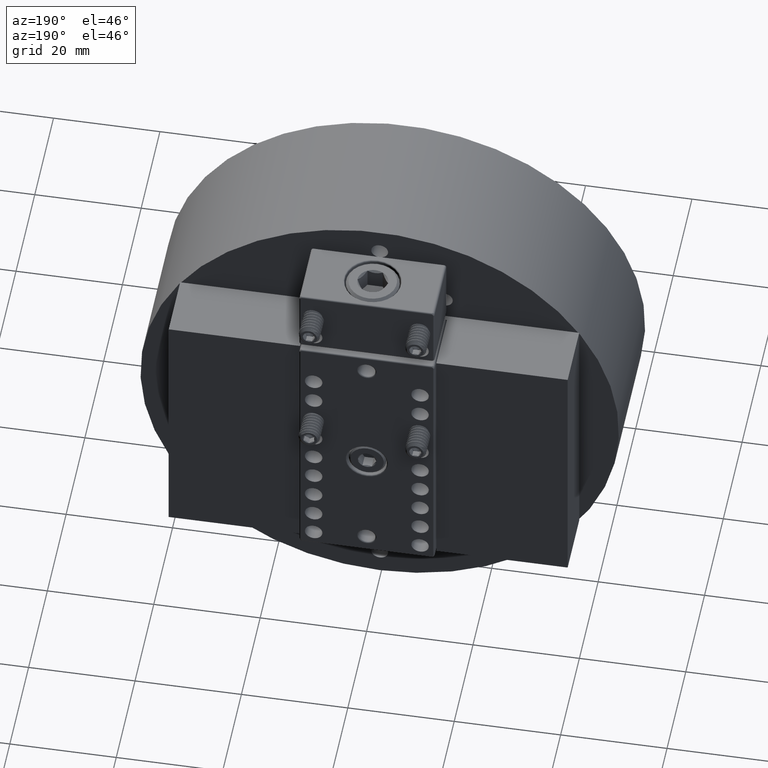
[diagram: clean part render]
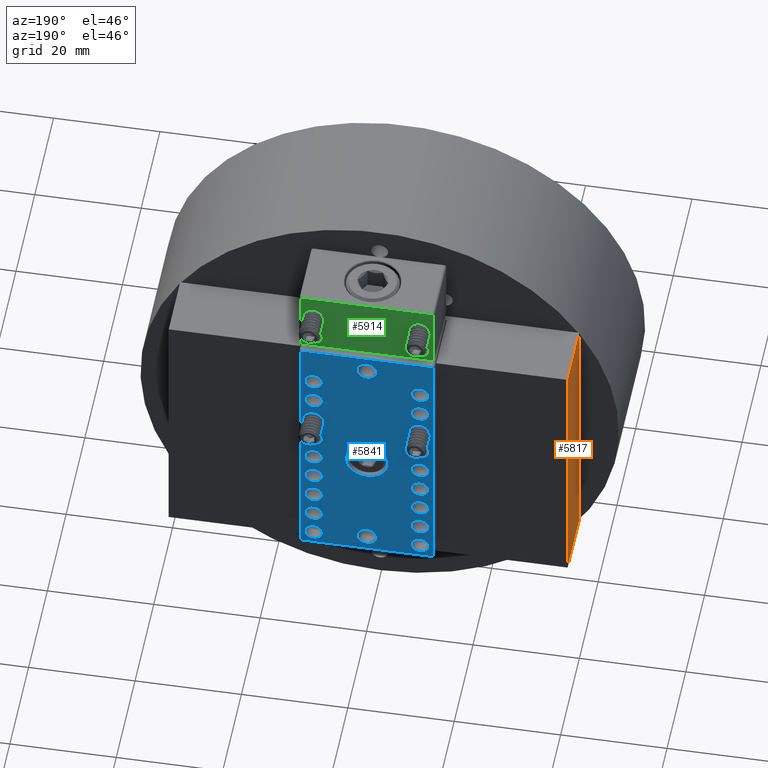
[diagram: same view with three faces highlighted in distinct colors, each labeled with its STEP entity id]
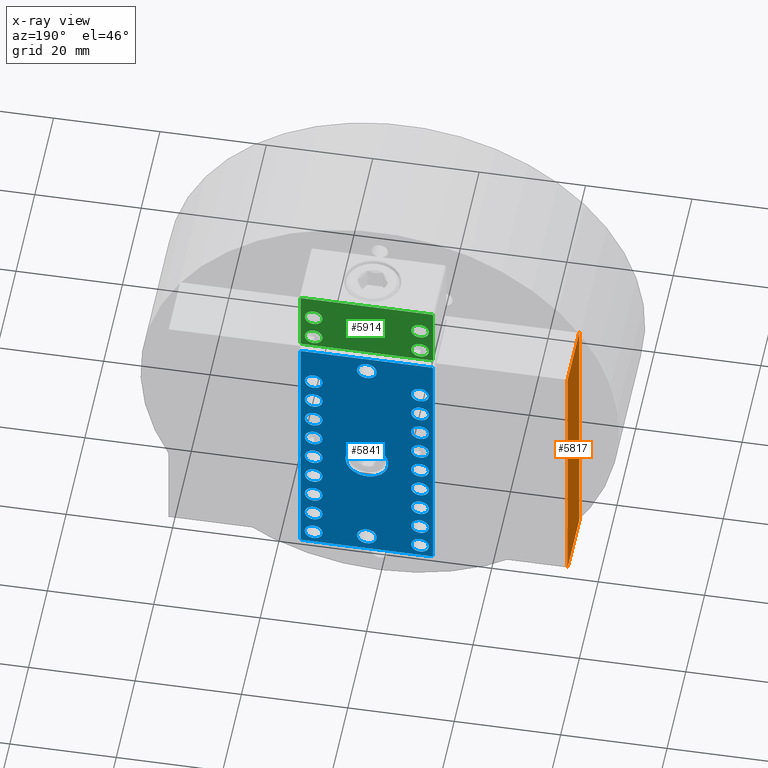
[diagram: x-ray of the same camera — body ghosted, the three highlighted faces saturated]
A machine part, auxiliary view with three faces highlighted in distinct colors.
The next image is the same camera in x-ray (body ghosted, the three faces saturated) — at least one of them is partly hidden behind the body in this view.
Their STEP definitions:

[orange] entity #5817 — the highlighted planar face has unit normal (-1, -0, 0).
#631=PLANE('',#6198);
#729=FACE_OUTER_BOUND('',#1095,.T.);
#1095=EDGE_LOOP('',(#3963,#3964,#3965,#3966));
#1531=LINE('',#8484,#1864);
#1547=LINE('',#8517,#1880);
#1551=LINE('',#8523,#1884);
#1554=LINE('',#8529,#1887);
#1864=VECTOR('',#6864,0.393700787401575);
#1880=VECTOR('',#6890,0.393700787401575);
#1884=VECTOR('',#6896,0.393700787401575);
#1887=VECTOR('',#6903,0.393700787401575);
#2484=VERTEX_POINT('',#8481);
#2485=VERTEX_POINT('',#8483);
#2496=VERTEX_POINT('',#8514);
#2497=VERTEX_POINT('',#8516);
#3038=EDGE_CURVE('',#2484,#2485,#1531,.T.);
#3054=EDGE_CURVE('',#2496,#2497,#1547,.T.);
#3058=EDGE_CURVE('',#2485,#2496,#1551,.T.);
#3061=EDGE_CURVE('',#2484,#2497,#1554,.T.);
#3963=ORIENTED_EDGE('',*,*,#3038,.F.);
#3964=ORIENTED_EDGE('',*,*,#3061,.T.);
#3965=ORIENTED_EDGE('',*,*,#3054,.F.);
#3966=ORIENTED_EDGE('',*,*,#3058,.F.);
#5817=ADVANCED_FACE('',(#729),#631,.T.);
#6198=AXIS2_PLACEMENT_3D('',#8531,#6905,#6906);
#6864=DIRECTION('',(0.,0.,-1.));
#6890=DIRECTION('',(0.,0.,1.));
#6896=DIRECTION('',(0.,1.,0.));
#6903=DIRECTION('',(0.,1.,0.));
#6905=DIRECTION('center_axis',(-1.,0.,0.));
#6906=DIRECTION('ref_axis',(0.,0.,1.));
#8481=CARTESIAN_POINT('',(-1.47637795275591,1.41732283464567,0.984251968503936));
#8483=CARTESIAN_POINT('',(-1.47637795275591,1.41732283464567,-0.984251968503938));
#8484=CARTESIAN_POINT('',(-1.47637795275591,1.41732283464567,0.984251968503936));
#8514=CARTESIAN_POINT('',(-1.47637795275591,1.90157480314961,-0.984251968503938));
#8516=CARTESIAN_POINT('',(-1.47637795275591,1.90157480314961,0.984251968503936));
#8517=CARTESIAN_POINT('',(-1.47637795275591,1.90157480314961,0.984251968503936));
#8523=CARTESIAN_POINT('',(-1.47637795275591,1.41732283464567,-0.984251968503938));
#8529=CARTESIAN_POINT('',(-1.47637795275591,1.41732283464567,0.984251968503936));
#8531=CARTESIAN_POINT('Origin',(-1.47637795275591,1.41732283464567,-0.984251968503938));

[blue] entity #5841 — the highlighted planar face has unit normal (0, 1, -0).
#546=FACE_BOUND('',#1126,.T.);
#547=FACE_BOUND('',#1127,.T.);
#548=FACE_BOUND('',#1128,.T.);
#549=FACE_BOUND('',#1129,.T.);
#550=FACE_BOUND('',#1130,.T.);
#551=FACE_BOUND('',#1131,.T.);
#552=FACE_BOUND('',#1132,.T.);
#553=FACE_BOUND('',#1133,.T.);
#554=FACE_BOUND('',#1134,.T.);
#555=FACE_BOUND('',#1135,.T.);
#556=FACE_BOUND('',#1136,.T.);
#557=FACE_BOUND('',#1137,.T.);
#558=FACE_BOUND('',#1138,.T.);
#559=FACE_BOUND('',#1139,.T.);
#560=FACE_BOUND('',#1140,.T.);
#561=FACE_BOUND('',#1141,.T.);
#562=FACE_BOUND('',#1142,.T.);
#563=FACE_BOUND('',#1143,.T.);
#564=FACE_BOUND('',#1144,.T.);
#565=FACE_BOUND('',#1145,.T.);
#566=FACE_BOUND('',#1146,.T.);
#638=PLANE('',#6274);
#753=FACE_OUTER_BOUND('',#1125,.T.);
#1125=EDGE_LOOP('',(#4094,#4095,#4096,#4097,#4098,#4099,#4100,#4101));
#1126=EDGE_LOOP('',(#4102));
#1127=EDGE_LOOP('',(#4103));
#1128=EDGE_LOOP('',(#4104));
#1129=EDGE_LOOP('',(#4105));
#1130=EDGE_LOOP('',(#4106));
#1131=EDGE_LOOP('',(#4107));
#1132=EDGE_LOOP('',(#4108));
#1133=EDGE_LOOP('',(#4109));
#1134=EDGE_LOOP('',(#4110));
#1135=EDGE_LOOP('',(#4111));
#1136=EDGE_LOOP('',(#4112));
#1137=EDGE_LOOP('',(#4113));
#1138=EDGE_LOOP('',(#4114));
#1139=EDGE_LOOP('',(#4115));
#1140=EDGE_LOOP('',(#4116));
#1141=EDGE_LOOP('',(#4117));
#1142=EDGE_LOOP('',(#4118));
#1143=EDGE_LOOP('',(#4119));
#1144=EDGE_LOOP('',(#4120));
#1145=EDGE_LOOP('',(#4121));
#1146=EDGE_LOOP('',(#4122));
#1609=LINE('',#8788,#1942);
#1610=LINE('',#8792,#1943);
#1611=LINE('',#8796,#1944);
#1612=LINE('',#8800,#1945);
#1942=VECTOR('',#7112,0.96);
#1943=VECTOR('',#7115,1.96);
#1944=VECTOR('',#7118,0.96);
#1945=VECTOR('',#7121,1.96);
#2213=CIRCLE('',#6221,0.0649606299212594);
#2215=CIRCLE('',#6224,0.0649606299212594);
#2217=CIRCLE('',#6227,0.0649606299212595);
#2219=CIRCLE('',#6230,0.0649606299212594);
#2221=CIRCLE('',#6233,0.0649606299212594);
#2223=CIRCLE('',#6236,0.0649606299212595);
#2225=CIRCLE('',#6239,0.0649606299212595);
#2227=CIRCLE('',#6242,0.0649606299212595);
#2229=CIRCLE('',#6245,0.0649606299212595);
#2231=CIRCLE('',#6248,0.0649606299212595);
#2233=CIRCLE('',#6251,0.0649606299212595);
#2235=CIRCLE('',#6254,0.0649606299212594);
#2237=CIRCLE('',#6257,0.0649606299212594);
#2239=CIRCLE('',#6260,0.0649606299212595);
#2241=CIRCLE('',#6263,0.0649606299212594);
#2243=CIRCLE('',#6266,0.0649606299212594);
#2247=CIRCLE('',#6275,0.01);
#2248=CIRCLE('',#6276,0.01);
#2249=CIRCLE('',#6277,0.01);
#2250=CIRCLE('',#6278,0.01);
#2251=CIRCLE('',#6279,0.0649606299212594);
#2252=CIRCLE('',#6280,0.0649606299212594);
#2253=CIRCLE('',#6281,0.0725);
#2254=CIRCLE('',#6282,0.0725);
#2255=CIRCLE('',#6283,0.157637795275591);
#2530=VERTEX_POINT('',#8634);
#2532=VERTEX_POINT('',#8640);
#2534=VERTEX_POINT('',#8646);
#2536=VERTEX_POINT('',#8652);
#2538=VERTEX_POINT('',#8658);
#2540=VERTEX_POINT('',#8664);
#2542=VERTEX_POINT('',#8670);
#2544=VERTEX_POINT('',#8676);
#2546=VERTEX_POINT('',#8682);
#2548=VERTEX_POINT('',#8688);
#2550=VERTEX_POINT('',#8694);
#2552=VERTEX_POINT('',#8700);
#2554=VERTEX_POINT('',#8706);
#2556=VERTEX_POINT('',#8712);
#2558=VERTEX_POINT('',#8718);
#2560=VERTEX_POINT('',#8724);
#2588=VERTEX_POINT('',#8786);
#2589=VERTEX_POINT('',#8787);
#2590=VERTEX_POINT('',#8789);
#2591=VERTEX_POINT('',#8791);
#2592=VERTEX_POINT('',#8793);
#2593=VERTEX_POINT('',#8795);
#2594=VERTEX_POINT('',#8797);
#2595=VERTEX_POINT('',#8799);
#2596=VERTEX_POINT('',#8802);
#2597=VERTEX_POINT('',#8804);
#2598=VERTEX_POINT('',#8806);
#2599=VERTEX_POINT('',#8808);
#2600=VERTEX_POINT('',#8810);
#3095=EDGE_CURVE('',#2530,#2530,#2213,.T.);
#3098=EDGE_CURVE('',#2532,#2532,#2215,.T.);
#3101=EDGE_CURVE('',#2534,#2534,#2217,.T.);
#3104=EDGE_CURVE('',#2536,#2536,#2219,.T.);
#3107=EDGE_CURVE('',#2538,#2538,#2221,.T.);
#3110=EDGE_CURVE('',#2540,#2540,#2223,.T.);
#3113=EDGE_CURVE('',#2542,#2542,#2225,.T.);
#3116=EDGE_CURVE('',#2544,#2544,#2227,.T.);
#3119=EDGE_CURVE('',#2546,#2546,#2229,.T.);
#3122=EDGE_CURVE('',#2548,#2548,#2231,.T.);
#3125=EDGE_CURVE('',#2550,#2550,#2233,.T.);
#3128=EDGE_CURVE('',#2552,#2552,#2235,.T.);
#3131=EDGE_CURVE('',#2554,#2554,#2237,.T.);
#3134=EDGE_CURVE('',#2556,#2556,#2239,.T.);
#3137=EDGE_CURVE('',#2558,#2558,#2241,.T.);
#3140=EDGE_CURVE('',#2560,#2560,#2243,.T.);
#3168=EDGE_CURVE('',#2588,#2589,#1609,.T.);
#3169=EDGE_CURVE('',#2589,#2590,#2247,.T.);
#3170=EDGE_CURVE('',#2590,#2591,#1610,.T.);
#3171=EDGE_CURVE('',#2591,#2592,#2248,.T.);
#3172=EDGE_CURVE('',#2592,#2593,#1611,.T.);
#3173=EDGE_CURVE('',#2593,#2594,#2249,.T.);
#3174=EDGE_CURVE('',#2594,#2595,#1612,.T.);
#3175=EDGE_CURVE('',#2595,#2588,#2250,.T.);
#3176=EDGE_CURVE('',#2596,#2596,#2251,.T.);
#3177=EDGE_CURVE('',#2597,#2597,#2252,.T.);
#3178=EDGE_CURVE('',#2598,#2598,#2253,.F.);
#3179=EDGE_CURVE('',#2599,#2599,#2254,.F.);
#3180=EDGE_CURVE('',#2600,#2600,#2255,.F.);
#4094=ORIENTED_EDGE('',*,*,#3168,.T.);
#4095=ORIENTED_EDGE('',*,*,#3169,.T.);
#4096=ORIENTED_EDGE('',*,*,#3170,.T.);
#4097=ORIENTED_EDGE('',*,*,#3171,.T.);
#4098=ORIENTED_EDGE('',*,*,#3172,.T.);
#4099=ORIENTED_EDGE('',*,*,#3173,.T.);
#4100=ORIENTED_EDGE('',*,*,#3174,.T.);
#4101=ORIENTED_EDGE('',*,*,#3175,.T.);
#4102=ORIENTED_EDGE('',*,*,#3176,.F.);
#4103=ORIENTED_EDGE('',*,*,#3140,.F.);
#4104=ORIENTED_EDGE('',*,*,#3137,.F.);
#4105=ORIENTED_EDGE('',*,*,#3134,.F.);
#4106=ORIENTED_EDGE('',*,*,#3131,.F.);
#4107=ORIENTED_EDGE('',*,*,#3128,.F.);
#4108=ORIENTED_EDGE('',*,*,#3125,.F.);
#4109=ORIENTED_EDGE('',*,*,#3122,.F.);
#4110=ORIENTED_EDGE('',*,*,#3119,.F.);
#4111=ORIENTED_EDGE('',*,*,#3116,.F.);
#4112=ORIENTED_EDGE('',*,*,#3113,.F.);
#4113=ORIENTED_EDGE('',*,*,#3110,.F.);
#4114=ORIENTED_EDGE('',*,*,#3107,.F.);
#4115=ORIENTED_EDGE('',*,*,#3104,.F.);
#4116=ORIENTED_EDGE('',*,*,#3101,.F.);
#4117=ORIENTED_EDGE('',*,*,#3098,.F.);
#4118=ORIENTED_EDGE('',*,*,#3095,.F.);
#4119=ORIENTED_EDGE('',*,*,#3177,.F.);
#4120=ORIENTED_EDGE('',*,*,#3178,.T.);
#4121=ORIENTED_EDGE('',*,*,#3179,.T.);
#4122=ORIENTED_EDGE('',*,*,#3180,.T.);
#5841=ADVANCED_FACE('',(#753,#546,#547,#548,#549,#550,#551,#552,#553,#554,
#555,#556,#557,#558,#559,#560,#561,#562,#563,#564,#565,#566),#638,.T.);
#6221=AXIS2_PLACEMENT_3D('',#8636,#6965,#6966);
#6224=AXIS2_PLACEMENT_3D('',#8642,#6972,#6973);
#6227=AXIS2_PLACEMENT_3D('',#8648,#6979,#6980);
#6230=AXIS2_PLACEMENT_3D('',#8654,#6986,#6987);
#6233=AXIS2_PLACEMENT_3D('',#8660,#6993,#6994);
#6236=AXIS2_PLACEMENT_3D('',#8666,#7000,#7001);
#6239=AXIS2_PLACEMENT_3D('',#8672,#7007,#7008);
#6242=AXIS2_PLACEMENT_3D('',#8678,#7014,#7015);
#6245=AXIS2_PLACEMENT_3D('',#8684,#7021,#7022);
#6248=AXIS2_PLACEMENT_3D('',#8690,#7028,#7029);
#6251=AXIS2_PLACEMENT_3D('',#8696,#7035,#7036);
#6254=AXIS2_PLACEMENT_3D('',#8702,#7042,#7043);
#6257=AXIS2_PLACEMENT_3D('',#8708,#7049,#7050);
#6260=AXIS2_PLACEMENT_3D('',#8714,#7056,#7057);
#6263=AXIS2_PLACEMENT_3D('',#8720,#7063,#7064);
#6266=AXIS2_PLACEMENT_3D('',#8726,#7070,#7071);
#6274=AXIS2_PLACEMENT_3D('',#8785,#7110,#7111);
#6275=AXIS2_PLACEMENT_3D('',#8790,#7113,#7114);
#6276=AXIS2_PLACEMENT_3D('',#8794,#7116,#7117);
#6277=AXIS2_PLACEMENT_3D('',#8798,#7119,#7120);
#6278=AXIS2_PLACEMENT_3D('',#8801,#7122,#7123);
#6279=AXIS2_PLACEMENT_3D('',#8803,#7124,#7125);
#6280=AXIS2_PLACEMENT_3D('',#8805,#7126,#7127);
#6281=AXIS2_PLACEMENT_3D('',#8807,#7128,#7129);
#6282=AXIS2_PLACEMENT_3D('',#8809,#7130,#7131);
#6283=AXIS2_PLACEMENT_3D('',#8811,#7132,#7133);
#6965=DIRECTION('center_axis',(0.,0.,1.));
#6966=DIRECTION('ref_axis',(1.,0.,0.));
#6972=DIRECTION('center_axis',(0.,0.,1.));
#6973=DIRECTION('ref_axis',(1.,0.,0.));
#6979=DIRECTION('center_axis',(0.,0.,1.));
#6980=DIRECTION('ref_axis',(1.,0.,0.));
#6986=DIRECTION('center_axis',(0.,0.,1.));
#6987=DIRECTION('ref_axis',(1.,0.,0.));
#6993=DIRECTION('center_axis',(0.,0.,1.));
#6994=DIRECTION('ref_axis',(1.,0.,0.));
#7000=DIRECTION('center_axis',(0.,0.,1.));
#7001=DIRECTION('ref_axis',(1.,0.,0.));
#7007=DIRECTION('center_axis',(0.,0.,1.));
#7008=DIRECTION('ref_axis',(1.,0.,0.));
#7014=DIRECTION('center_axis',(0.,0.,1.));
#7015=DIRECTION('ref_axis',(1.,0.,0.));
#7021=DIRECTION('center_axis',(0.,0.,1.));
#7022=DIRECTION('ref_axis',(1.,0.,0.));
#7028=DIRECTION('center_axis',(0.,0.,1.));
#7029=DIRECTION('ref_axis',(1.,0.,0.));
#7035=DIRECTION('center_axis',(0.,0.,1.));
#7036=DIRECTION('ref_axis',(1.,0.,0.));
#7042=DIRECTION('center_axis',(0.,0.,1.));
#7043=DIRECTION('ref_axis',(1.,0.,0.));
#7049=DIRECTION('center_axis',(0.,0.,1.));
#7050=DIRECTION('ref_axis',(1.,0.,0.));
#7056=DIRECTION('center_axis',(0.,0.,1.));
#7057=DIRECTION('ref_axis',(1.,0.,0.));
#7063=DIRECTION('center_axis',(0.,0.,1.));
#7064=DIRECTION('ref_axis',(1.,0.,0.));
#7070=DIRECTION('center_axis',(0.,0.,1.));
#7071=DIRECTION('ref_axis',(1.,0.,0.));
#7110=DIRECTION('center_axis',(0.,0.,1.));
#7111=DIRECTION('ref_axis',(1.,0.,0.));
#7112=DIRECTION('',(1.22364024716212E-16,-1.,0.));
#7113=DIRECTION('center_axis',(0.,0.,1.));
#7114=DIRECTION('ref_axis',(1.,0.,0.));
#7115=DIRECTION('',(1.,0.,0.));
#7116=DIRECTION('center_axis',(0.,0.,1.));
#7117=DIRECTION('ref_axis',(1.,0.,0.));
#7118=DIRECTION('',(0.,1.,0.));
#7119=DIRECTION('center_axis',(0.,0.,1.));
#7120=DIRECTION('ref_axis',(1.,0.,0.));
#7121=DIRECTION('',(-1.,0.,0.));
#7122=DIRECTION('center_axis',(0.,0.,1.));
#7123=DIRECTION('ref_axis',(1.,0.,0.));
#7124=DIRECTION('center_axis',(0.,0.,1.));
#7125=DIRECTION('ref_axis',(1.,0.,0.));
#7126=DIRECTION('center_axis',(0.,0.,1.));
#7127=DIRECTION('ref_axis',(1.,0.,0.));
#7128=DIRECTION('center_axis',(0.,0.,1.));
#7129=DIRECTION('ref_axis',(1.,0.,0.));
#7130=DIRECTION('center_axis',(0.,0.,1.));
#7131=DIRECTION('ref_axis',(1.,0.,0.));
#7132=DIRECTION('center_axis',(0.,0.,1.));
#7133=DIRECTION('ref_axis',(1.,0.,0.));
#8634=CARTESIAN_POINT('',(0.241729133858276,-0.893699212598436,0.5));
#8636=CARTESIAN_POINT('Origin',(0.306689763779536,-0.893699212598436,0.5));
#8640=CARTESIAN_POINT('',(0.438629133858276,-0.893699212598435,0.5));
#8642=CARTESIAN_POINT('Origin',(0.503589763779536,-0.893699212598435,0.5));
#8646=CARTESIAN_POINT('',(0.635529133858276,-0.893699212598433,0.5));
#8648=CARTESIAN_POINT('Origin',(0.700489763779536,-0.893699212598433,0.5));
#8652=CARTESIAN_POINT('',(0.832429133858276,-0.893699212598432,0.5));
#8654=CARTESIAN_POINT('Origin',(0.897389763779536,-0.893699212598432,0.5));
#8658=CARTESIAN_POINT('',(1.02932913385828,-0.893699212598431,0.5));
#8660=CARTESIAN_POINT('Origin',(1.09428976377954,-0.893699212598431,0.5));
#8664=CARTESIAN_POINT('',(1.22622913385828,-0.893699212598429,0.5));
#8666=CARTESIAN_POINT('Origin',(1.29118976377954,-0.893699212598429,0.5));
#8670=CARTESIAN_POINT('',(1.42312913385828,-0.893699212598428,0.5));
#8672=CARTESIAN_POINT('Origin',(1.48808976377954,-0.893699212598428,0.5));
#8676=CARTESIAN_POINT('',(1.62002913385828,-0.893699212598426,0.5));
#8678=CARTESIAN_POINT('Origin',(1.68498976377954,-0.893699212598426,0.5));
#8682=CARTESIAN_POINT('',(1.62002913385827,-0.106299212598427,0.5));
#8684=CARTESIAN_POINT('Origin',(1.68498976377953,-0.106299212598427,0.5));
#8688=CARTESIAN_POINT('',(1.42312913385827,-0.106299212598428,0.5));
#8690=CARTESIAN_POINT('Origin',(1.48808976377953,-0.106299212598428,0.5));
#8694=CARTESIAN_POINT('',(1.22622913385827,-0.106299212598429,0.5));
#8696=CARTESIAN_POINT('Origin',(1.29118976377953,-0.106299212598429,0.5));
#8700=CARTESIAN_POINT('',(1.02932913385827,-0.106299212598431,0.5));
#8702=CARTESIAN_POINT('Origin',(1.09428976377953,-0.106299212598431,0.5));
#8706=CARTESIAN_POINT('',(0.832429133858268,-0.106299212598432,0.5));
#8708=CARTESIAN_POINT('Origin',(0.897389763779527,-0.106299212598432,0.5));
#8712=CARTESIAN_POINT('',(0.635529133858268,-0.106299212598433,0.5));
#8714=CARTESIAN_POINT('Origin',(0.700489763779528,-0.106299212598433,0.5));
#8718=CARTESIAN_POINT('',(0.438629133858268,-0.106299212598435,0.5));
#8720=CARTESIAN_POINT('Origin',(0.503589763779527,-0.106299212598435,0.5));
#8724=CARTESIAN_POINT('',(0.241729133858268,-0.106299212598436,0.5));
#8726=CARTESIAN_POINT('Origin',(0.306689763779528,-0.106299212598436,0.5));
#8785=CARTESIAN_POINT('Origin',(0.,0.,0.5));
#8786=CARTESIAN_POINT('',(0.01,-0.02,0.5));
#8787=CARTESIAN_POINT('',(0.0100000000000001,-0.98,0.5));
#8788=CARTESIAN_POINT('',(0.01,-0.0200000000000001,0.5));
#8789=CARTESIAN_POINT('',(0.0200000000000001,-0.99,0.5));
#8790=CARTESIAN_POINT('Origin',(0.0200000000000001,-0.98,0.5));
#8791=CARTESIAN_POINT('',(1.98,-0.99,0.5));
#8792=CARTESIAN_POINT('',(0.0200000000000001,-0.99,0.5));
#8793=CARTESIAN_POINT('',(1.99,-0.98,0.5));
#8794=CARTESIAN_POINT('Origin',(1.98,-0.98,0.5));
#8795=CARTESIAN_POINT('',(1.99,-0.02,0.5));
#8796=CARTESIAN_POINT('',(1.99,-0.98,0.5));
#8797=CARTESIAN_POINT('',(1.98,-0.01,0.5));
#8798=CARTESIAN_POINT('Origin',(1.98,-0.02,0.5));
#8799=CARTESIAN_POINT('',(0.02,-0.01,0.5));
#8800=CARTESIAN_POINT('',(1.98,-0.01,0.5));
#8801=CARTESIAN_POINT('Origin',(0.02,-0.02,0.5));
#8802=CARTESIAN_POINT('',(0.0448291338582681,-0.106299212598438,0.5));
#8803=CARTESIAN_POINT('Origin',(0.109789763779527,-0.106299212598438,0.5));
#8804=CARTESIAN_POINT('',(0.0448291338582763,-0.893699212598438,0.5));
#8805=CARTESIAN_POINT('Origin',(0.109789763779536,-0.893699212598438,0.5));
#8806=CARTESIAN_POINT('',(1.7936,-0.5,0.5));
#8807=CARTESIAN_POINT('Origin',(1.8661,-0.5,0.5));
#8808=CARTESIAN_POINT('',(0.0613165354330708,-0.5,0.5));
#8809=CARTESIAN_POINT('Origin',(0.133816535433071,-0.5,0.5));
#8810=CARTESIAN_POINT('',(0.76358031496063,-0.5,0.5));
#8811=CARTESIAN_POINT('Origin',(0.92121811023622,-0.5,0.5));

[green] entity #5914 — the highlighted planar face has unit normal (0, 1, -0).
#589=FACE_BOUND('',#1242,.T.);
#590=FACE_BOUND('',#1243,.T.);
#591=FACE_BOUND('',#1244,.T.);
#592=FACE_BOUND('',#1245,.T.);
#652=PLANE('',#6418);
#826=FACE_OUTER_BOUND('',#1241,.T.);
#1241=EDGE_LOOP('',(#4455,#4456,#4457,#4458,#4459,#4460,#4461,#4462));
#1242=EDGE_LOOP('',(#4463));
#1243=EDGE_LOOP('',(#4464));
#1244=EDGE_LOOP('',(#4465));
#1245=EDGE_LOOP('',(#4466));
#1668=LINE('',#9277,#2001);
#1669=LINE('',#9281,#2002);
#1670=LINE('',#9285,#2003);
#1671=LINE('',#9289,#2004);
#2001=VECTOR('',#7459,0.46);
#2002=VECTOR('',#7462,0.96);
#2003=VECTOR('',#7465,0.46);
#2004=VECTOR('',#7468,0.96);
#2329=CIRCLE('',#6419,0.01);
#2330=CIRCLE('',#6420,0.01);
#2331=CIRCLE('',#6421,0.01);
#2332=CIRCLE('',#6422,0.01);
#2333=CIRCLE('',#6423,0.0649606299212598);
#2334=CIRCLE('',#6424,0.0649606299212598);
#2335=CIRCLE('',#6425,0.0649606299212598);
#2336=CIRCLE('',#6426,0.0649606299212598);
#2664=VERTEX_POINT('',#9275);
#2665=VERTEX_POINT('',#9276);
#2666=VERTEX_POINT('',#9278);
#2667=VERTEX_POINT('',#9280);
#2668=VERTEX_POINT('',#9282);
#2669=VERTEX_POINT('',#9284);
#2670=VERTEX_POINT('',#9286);
#2671=VERTEX_POINT('',#9288);
#2672=VERTEX_POINT('',#9291);
#2673=VERTEX_POINT('',#9293);
#2674=VERTEX_POINT('',#9295);
#2675=VERTEX_POINT('',#9297);
#3315=EDGE_CURVE('',#2664,#2665,#1668,.T.);
#3316=EDGE_CURVE('',#2665,#2666,#2329,.T.);
#3317=EDGE_CURVE('',#2666,#2667,#1669,.T.);
#3318=EDGE_CURVE('',#2667,#2668,#2330,.T.);
#3319=EDGE_CURVE('',#2668,#2669,#1670,.T.);
#3320=EDGE_CURVE('',#2669,#2670,#2331,.T.);
#3321=EDGE_CURVE('',#2670,#2671,#1671,.T.);
#3322=EDGE_CURVE('',#2671,#2664,#2332,.T.);
#3323=EDGE_CURVE('',#2672,#2672,#2333,.T.);
#3324=EDGE_CURVE('',#2673,#2673,#2334,.T.);
#3325=EDGE_CURVE('',#2674,#2674,#2335,.T.);
#3326=EDGE_CURVE('',#2675,#2675,#2336,.T.);
#4455=ORIENTED_EDGE('',*,*,#3315,.T.);
#4456=ORIENTED_EDGE('',*,*,#3316,.T.);
#4457=ORIENTED_EDGE('',*,*,#3317,.T.);
#4458=ORIENTED_EDGE('',*,*,#3318,.T.);
#4459=ORIENTED_EDGE('',*,*,#3319,.T.);
#4460=ORIENTED_EDGE('',*,*,#3320,.T.);
#4461=ORIENTED_EDGE('',*,*,#3321,.T.);
#4462=ORIENTED_EDGE('',*,*,#3322,.T.);
#4463=ORIENTED_EDGE('',*,*,#3323,.F.);
#4464=ORIENTED_EDGE('',*,*,#3324,.F.);
#4465=ORIENTED_EDGE('',*,*,#3325,.F.);
#4466=ORIENTED_EDGE('',*,*,#3326,.F.);
#5914=ADVANCED_FACE('',(#826,#589,#590,#591,#592),#652,.T.);
#6418=AXIS2_PLACEMENT_3D('',#9274,#7457,#7458);
#6419=AXIS2_PLACEMENT_3D('',#9279,#7460,#7461);
#6420=AXIS2_PLACEMENT_3D('',#9283,#7463,#7464);
#6421=AXIS2_PLACEMENT_3D('',#9287,#7466,#7467);
#6422=AXIS2_PLACEMENT_3D('',#9290,#7469,#7470);
#6423=AXIS2_PLACEMENT_3D('',#9292,#7471,#7472);
#6424=AXIS2_PLACEMENT_3D('',#9294,#7473,#7474);
#6425=AXIS2_PLACEMENT_3D('',#9296,#7475,#7476);
#6426=AXIS2_PLACEMENT_3D('',#9298,#7477,#7478);
#7457=DIRECTION('center_axis',(0.,0.,1.));
#7458=DIRECTION('ref_axis',(1.,0.,0.));
#7459=DIRECTION('',(1.,0.,0.));
#7460=DIRECTION('center_axis',(0.,0.,1.));
#7461=DIRECTION('ref_axis',(1.,0.,0.));
#7462=DIRECTION('',(-9.10615997888088E-17,1.,0.));
#7463=DIRECTION('center_axis',(0.,0.,1.));
#7464=DIRECTION('ref_axis',(1.,0.,0.));
#7465=DIRECTION('',(-1.,0.,0.));
#7466=DIRECTION('center_axis',(0.,0.,1.));
#7467=DIRECTION('ref_axis',(1.,0.,0.));
#7468=DIRECTION('',(1.22364024716212E-16,-1.,0.));
#7469=DIRECTION('center_axis',(0.,0.,1.));
#7470=DIRECTION('ref_axis',(1.,0.,0.));
#7471=DIRECTION('center_axis',(0.,0.,1.));
#7472=DIRECTION('ref_axis',(1.,0.,0.));
#7473=DIRECTION('center_axis',(0.,0.,1.));
#7474=DIRECTION('ref_axis',(1.,0.,0.));
#7475=DIRECTION('center_axis',(0.,0.,1.));
#7476=DIRECTION('ref_axis',(1.,0.,0.));
#7477=DIRECTION('center_axis',(0.,0.,1.));
#7478=DIRECTION('ref_axis',(1.,0.,0.));
#9274=CARTESIAN_POINT('Origin',(0.,0.,0.5));
#9275=CARTESIAN_POINT('',(0.0200000000000001,-0.99,0.5));
#9276=CARTESIAN_POINT('',(0.48,-0.99,0.5));
#9277=CARTESIAN_POINT('',(0.0200000000000001,-0.99,0.5));
#9278=CARTESIAN_POINT('',(0.49,-0.98,0.5));
#9279=CARTESIAN_POINT('Origin',(0.48,-0.98,0.5));
#9280=CARTESIAN_POINT('',(0.49,-0.02,0.5));
#9281=CARTESIAN_POINT('',(0.49,-0.98,0.5));
#9282=CARTESIAN_POINT('',(0.48,-0.01,0.5));
#9283=CARTESIAN_POINT('Origin',(0.48,-0.02,0.5));
#9284=CARTESIAN_POINT('',(0.02,-0.01,0.5));
#9285=CARTESIAN_POINT('',(0.48,-0.01,0.5));
#9286=CARTESIAN_POINT('',(0.01,-0.02,0.5));
#9287=CARTESIAN_POINT('Origin',(0.02,-0.02,0.5));
#9288=CARTESIAN_POINT('',(0.0100000000000001,-0.98,0.5));
#9289=CARTESIAN_POINT('',(0.01,-0.0200000000000001,0.5));
#9290=CARTESIAN_POINT('Origin',(0.0200000000000001,-0.98,0.5));
#9291=CARTESIAN_POINT('',(0.0350393700787403,-0.106299212598425,0.5));
#9292=CARTESIAN_POINT('Origin',(0.1,-0.106299212598425,0.5));
#9293=CARTESIAN_POINT('',(0.23503937007874,-0.106299212598425,0.5));
#9294=CARTESIAN_POINT('Origin',(0.3,-0.106299212598425,0.5));
#9295=CARTESIAN_POINT('',(0.235039370078749,-0.893699212598425,0.5));
#9296=CARTESIAN_POINT('Origin',(0.300000000000008,-0.893699212598425,0.5));
#9297=CARTESIAN_POINT('',(0.0350393700787485,-0.893699212598425,0.5));
#9298=CARTESIAN_POINT('Origin',(0.100000000000008,-0.893699212598425,0.5));